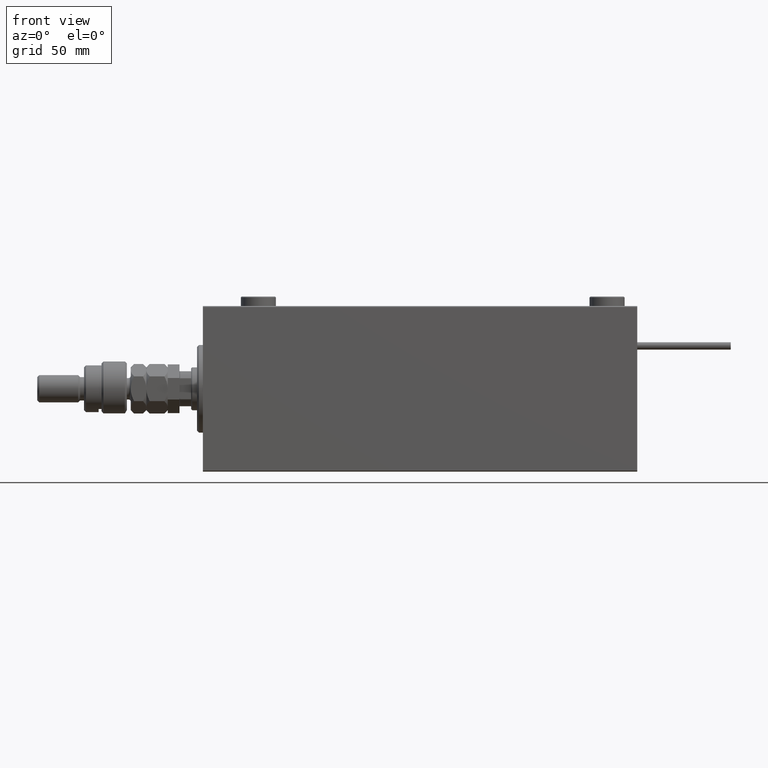
[diagram: clean part render]
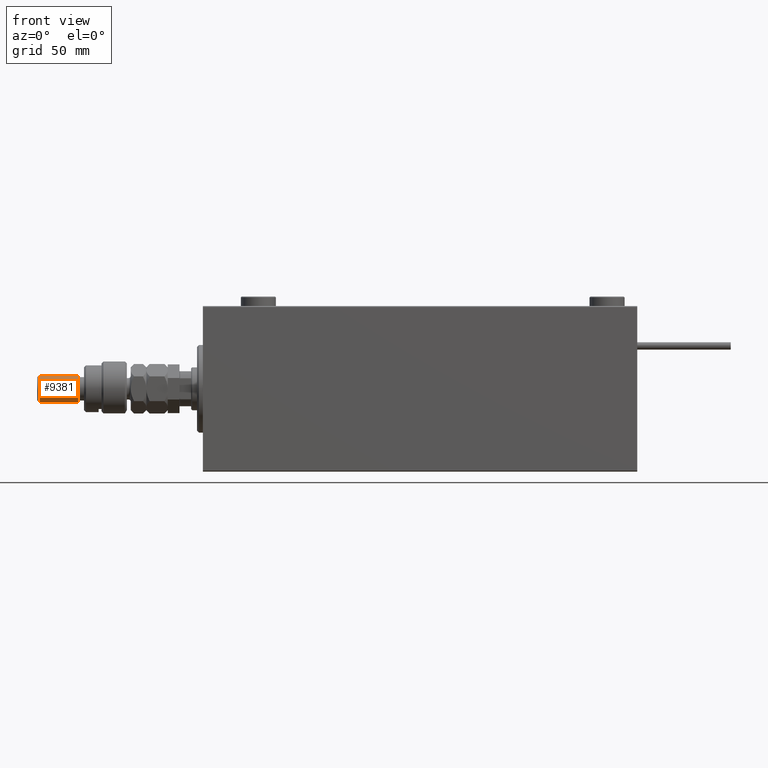
[diagram: same view with one face highlighted and labeled with its STEP entity id]
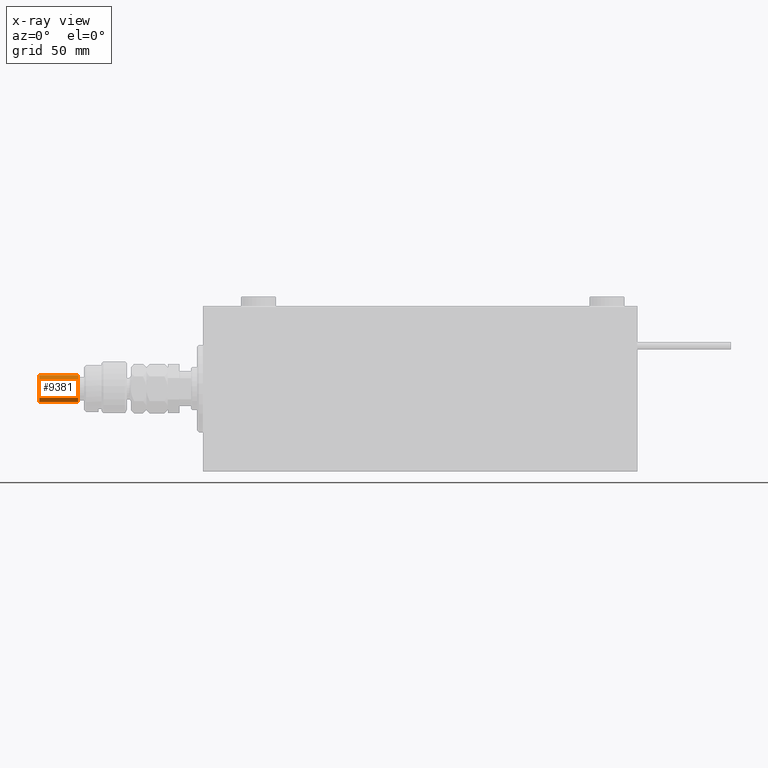
[diagram: x-ray of the same camera — body ghosted, the highlighted face saturated]
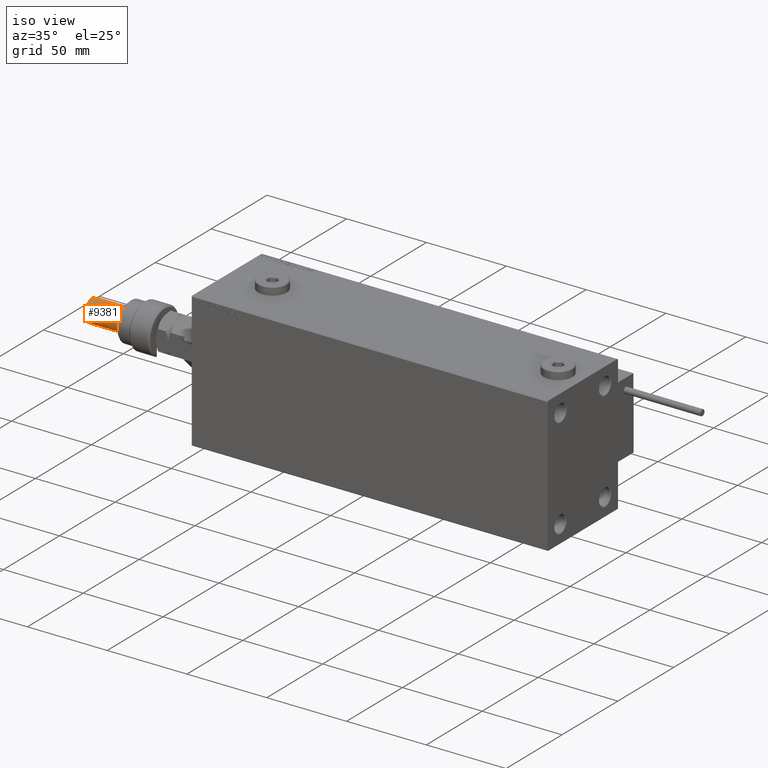
[diagram: same view with one face highlighted and labeled with its STEP entity id]
A machine part, front view. The second image highlights one B-rep face of the part: STEP entity #9381.
The next image is the same camera in x-ray: the body ghosted, the highlighted face saturated — about 0% of this face is hidden behind the body in this view.
A second angle (iso view) of the same face is appended — the face is thin or edge-on in the first view.
In plain terms, the highlighted cylindrical surface (edge-blend (fillet) strip) has radius 7 mm, axis along (1, 0, -0).
Its self-contained STEP definition (entity closure, byte-faithful):
#65 = CIRCLE ( 'NONE', #12588, 7.000000000000000000 ) ;
#3637 = CIRCLE ( 'NONE', #23333, 7.000000000000000000 ) ;
#4162 = LINE ( 'NONE', #38336, #51534 ) ;
#5506 = VERTEX_POINT ( 'NONE', #29796 ) ;
#7409 = DIRECTION ( 'NONE',  ( -0.000000000000000000, -0.000000000000000000, -1.000000000000000000 ) ) ;
#8101 = FACE_OUTER_BOUND ( 'NONE', #31725, .T. ) ;
#8133 = CARTESIAN_POINT ( 'NONE',  ( 7.000000000000000000, 8.572527594031473190E-16, 24.99999999999998934 ) ) ;
#8612 = VERTEX_POINT ( 'NONE', #11039 ) ;
#9381 = ADVANCED_FACE ( 'NONE', ( #8101 ), #33007, .T. ) ;
#11039 = CARTESIAN_POINT ( 'NONE',  ( -7.000000000000000000, 0.000000000000000000, 44.99999999999999289 ) ) ;
#12588 = AXIS2_PLACEMENT_3D ( 'NONE', #35140, #39064, #30659 ) ;
#12946 = ORIENTED_EDGE ( 'NONE', *, *, #53683, .T. ) ;
#14532 = DIRECTION ( 'NONE',  ( 1.000000000000000000, 0.000000000000000000, 0.000000000000000000 ) ) ;
#15211 = VERTEX_POINT ( 'NONE', #8133 ) ;
#16302 = ORIENTED_EDGE ( 'NONE', *, *, #18114, .F. ) ;
#17378 = LINE ( 'NONE', #46027, #27811 ) ;
#17740 = ORIENTED_EDGE ( 'NONE', *, *, #21530, .T. ) ;
#18114 = EDGE_CURVE ( 'NONE', #5506, #15211, #17378, .T. ) ;
#21530 = EDGE_CURVE ( 'NONE', #50632, #15211, #65, .T. ) ;
#23214 = DIRECTION ( 'NONE',  ( 0.000000000000000000, 0.000000000000000000, -1.000000000000000000 ) ) ;
#23333 = AXIS2_PLACEMENT_3D ( 'NONE', #27393, #23214, #14532 ) ;
#26593 = ORIENTED_EDGE ( 'NONE', *, *, #43239, .T. ) ;
#27393 = CARTESIAN_POINT ( 'NONE',  ( 0.000000000000000000, 0.000000000000000000, 44.99999999999999289 ) ) ;
#27811 = VECTOR ( 'NONE', #7409, 1000.000000000000000 ) ;
#29796 = CARTESIAN_POINT ( 'NONE',  ( 7.000000000000000000, 8.572527594031473190E-16, 44.99999999999999289 ) ) ;
#29906 = CARTESIAN_POINT ( 'NONE',  ( 0.000000000000000000, 0.000000000000000000, 46.00000000000000000 ) ) ;
#30659 = DIRECTION ( 'NONE',  ( 1.000000000000000000, 0.000000000000000000, 0.000000000000000000 ) ) ;
#30768 = CARTESIAN_POINT ( 'NONE',  ( -7.000000000000000000, 0.000000000000000000, 24.99999999999998934 ) ) ;
#31011 = AXIS2_PLACEMENT_3D ( 'NONE', #29906, #38314, #55403 ) ;
#31725 = EDGE_LOOP ( 'NONE', ( #16302, #26593, #12946, #17740 ) ) ;
#33007 = CYLINDRICAL_SURFACE ( 'NONE', #31011, 7.000000000000000000 ) ;
#34685 = DIRECTION ( 'NONE',  ( -0.000000000000000000, -0.000000000000000000, -1.000000000000000000 ) ) ;
#35140 = CARTESIAN_POINT ( 'NONE',  ( 0.000000000000000000, 0.000000000000000000, 24.99999999999998934 ) ) ;
#38314 = DIRECTION ( 'NONE',  ( -0.000000000000000000, -0.000000000000000000, -1.000000000000000000 ) ) ;
#38336 = CARTESIAN_POINT ( 'NONE',  ( -7.000000000000000000, 0.000000000000000000, 46.00000000000000000 ) ) ;
#39064 = DIRECTION ( 'NONE',  ( -0.000000000000000000, -0.000000000000000000, 1.000000000000000000 ) ) ;
#43239 = EDGE_CURVE ( 'NONE', #5506, #8612, #3637, .T. ) ;
#46027 = CARTESIAN_POINT ( 'NONE',  ( 7.000000000000000000, 8.572527594031473190E-16, 46.00000000000000000 ) ) ;
#50632 = VERTEX_POINT ( 'NONE', #30768 ) ;
#51534 = VECTOR ( 'NONE', #34685, 1000.000000000000000 ) ;
#53683 = EDGE_CURVE ( 'NONE', #8612, #50632, #4162, .T. ) ;
#55403 = DIRECTION ( 'NONE',  ( -1.000000000000000000, 0.000000000000000000, 0.000000000000000000 ) ) ;